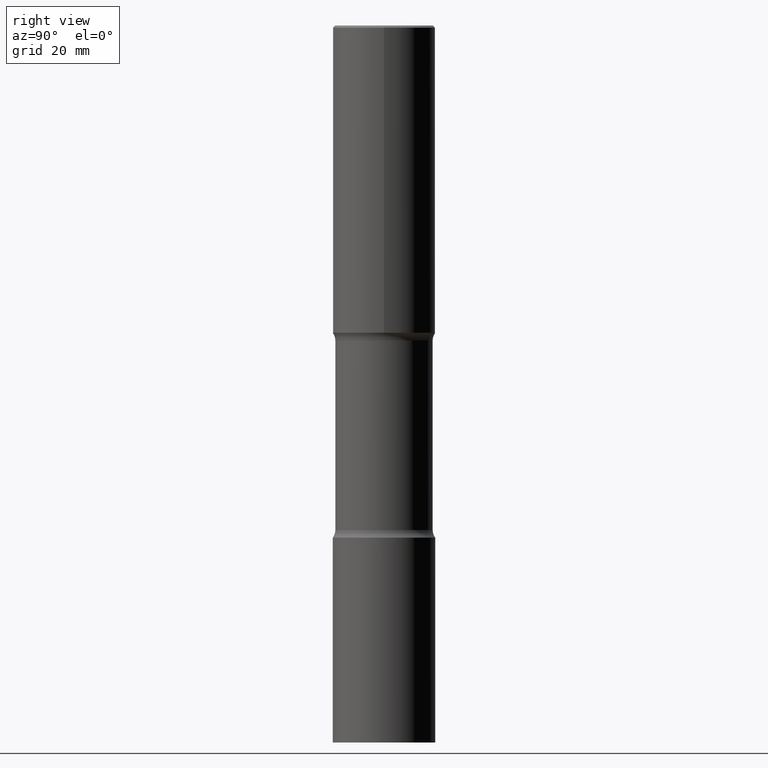
[diagram: clean part render]
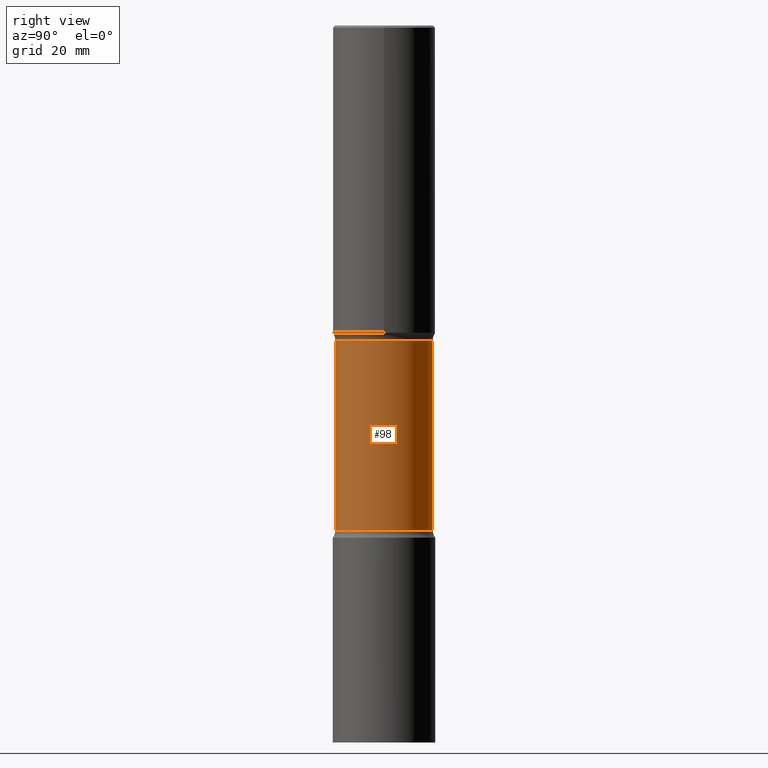
[diagram: same view with one face highlighted and labeled with its STEP entity id]
A machine part, right view. The second image highlights one B-rep face of the part: STEP entity #98.
In plain terms, the highlighted cylindrical surface (partial cylindrical patch) has radius 12.065 mm, axis along (0, -0, -1).
Its self-contained STEP definition (entity closure, byte-faithful):
#14 = LINE ( 'NONE', #503, #36 ) ;
#23 = ORIENTED_EDGE ( 'NONE', *, *, #285, .F. ) ;
#36 = VECTOR ( 'NONE', #495, 39.37007874015748143 ) ;
#38 = DIRECTION ( 'NONE',  ( 2.497161003496523093E-29, -3.417455170156083034E-15, -1.000000000000000000 ) ) ;
#48 = CARTESIAN_POINT ( 'NONE',  ( 3.316907271901049263E-15, 0.4749999999999889866, -3.075000000000000178 ) ) ;
#56 = CIRCLE ( 'NONE', #315, 0.4749999999999998668 ) ;
#98 = ADVANCED_FACE ( 'NONE', ( #154 ), #113, .T. ) ;
#110 = ORIENTED_EDGE ( 'NONE', *, *, #500, .T. ) ;
#113 = CYLINDRICAL_SURFACE ( 'NONE', #124, 0.4750000000000001443 ) ;
#124 = AXIS2_PLACEMENT_3D ( 'NONE', #387, #38, #321 ) ;
#130 = CARTESIAN_POINT ( 'NONE',  ( 7.417770215337909421E-29, -1.088244131785273239E-14, -3.074999999999998845 ) ) ;
#153 = CARTESIAN_POINT ( 'NONE',  ( 3.316907271901098961E-15, 0.4749999999999831024, -4.924999999999999822 ) ) ;
#154 = FACE_OUTER_BOUND ( 'NONE', #454, .T. ) ;
#171 = DIRECTION ( 'NONE',  ( 2.497161003496522813E-29, -3.417455170156083034E-15, -1.000000000000000000 ) ) ;
#187 = DIRECTION ( 'NONE',  ( 6.982962677686265922E-15, 1.000000000000000000, -2.300503573612009450E-15 ) ) ;
#194 = CARTESIAN_POINT ( 'NONE',  ( 1.203751807180647490E-28, -1.720473338264148338E-14, -4.924999999999998046 ) ) ;
#202 = LINE ( 'NONE', #249, #306 ) ;
#203 = VERTEX_POINT ( 'NONE', #48 ) ;
#228 = CARTESIAN_POINT ( 'NONE',  ( -3.344492773913547957E-15, -0.4750000000000106914, -3.074999999999997069 ) ) ;
#246 = DIRECTION ( 'NONE',  ( 2.497161003496523093E-29, -3.417455170156083034E-15, -1.000000000000000000 ) ) ;
#249 = CARTESIAN_POINT ( 'NONE',  ( -3.258736548941305678E-15, -0.4750000000000244582, -6.999999999999997335 ) ) ;
#285 = EDGE_CURVE ( 'NONE', #375, #341, #377, .T. ) ;
#306 = VECTOR ( 'NONE', #171, 39.37007874015748143 ) ;
#315 = AXIS2_PLACEMENT_3D ( 'NONE', #130, #246, #394 ) ;
#321 = DIRECTION ( 'NONE',  ( 6.982962677686265133E-15, 1.000000000000000000, -2.300503573612010239E-15 ) ) ;
#340 = EDGE_CURVE ( 'NONE', #203, #375, #14, .T. ) ;
#341 = VERTEX_POINT ( 'NONE', #457 ) ;
#375 = VERTEX_POINT ( 'NONE', #153 ) ;
#377 = CIRCLE ( 'NONE', #413, 0.4750000000000003109 ) ;
#383 = DIRECTION ( 'NONE',  ( 2.497161003496523093E-29, -3.417455170156083034E-15, -1.000000000000000000 ) ) ;
#387 = CARTESIAN_POINT ( 'NONE',  ( 1.721912715406176368E-28, -2.429595286071535581E-14, -6.999999999999998224 ) ) ;
#390 = ORIENTED_EDGE ( 'NONE', *, *, #446, .T. ) ;
#392 = VERTEX_POINT ( 'NONE', #228 ) ;
#394 = DIRECTION ( 'NONE',  ( 6.982962677686265133E-15, 1.000000000000000000, -3.450755360418017527E-15 ) ) ;
#413 = AXIS2_PLACEMENT_3D ( 'NONE', #194, #383, #187 ) ;
#446 = EDGE_CURVE ( 'NONE', #203, #392, #56, .T. ) ;
#454 = EDGE_LOOP ( 'NONE', ( #390, #110, #23, #467 ) ) ;
#457 = CARTESIAN_POINT ( 'NONE',  ( -3.344492773913501414E-15, -0.4750000000000176303, -4.924999999999997158 ) ) ;
#467 = ORIENTED_EDGE ( 'NONE', *, *, #340, .F. ) ;
#495 = DIRECTION ( 'NONE',  ( 2.497161003496522813E-29, -3.417455170156083034E-15, -1.000000000000000000 ) ) ;
#500 = EDGE_CURVE ( 'NONE', #392, #341, #202, .T. ) ;
#503 = CARTESIAN_POINT ( 'NONE',  ( 3.316907271901149448E-15, 0.4749999999999758304, -7.000000000000000000 ) ) ;